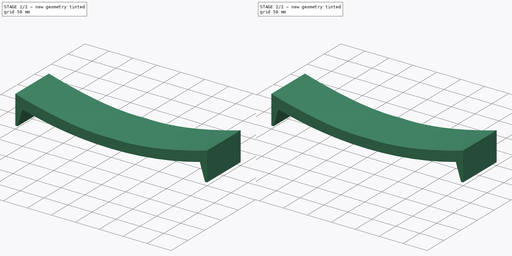
[diagram: build sequence overview — one tinted view per stage of 2, left to right]
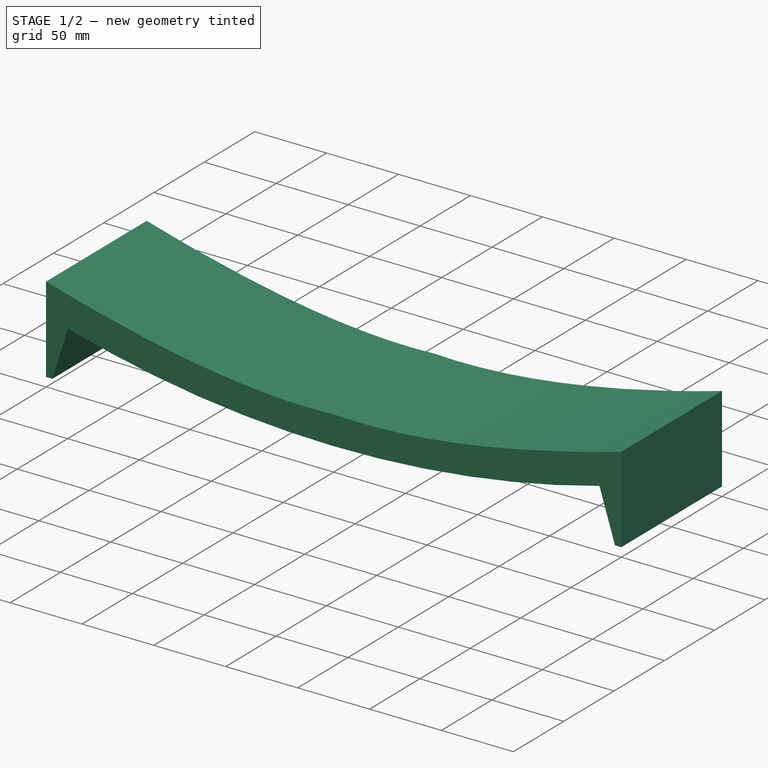
[diagram: stage 1 of 2 — iso view after this stage's code; geometry added in this stage tinted green]
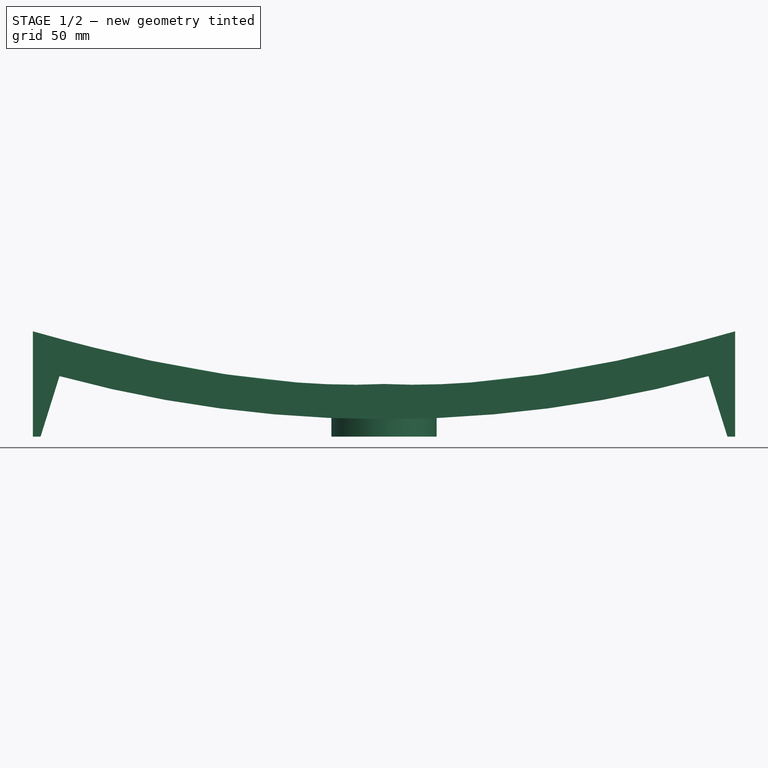
[diagram: stage 1 of 2 — front view after this stage's code; geometry added in this stage tinted green]
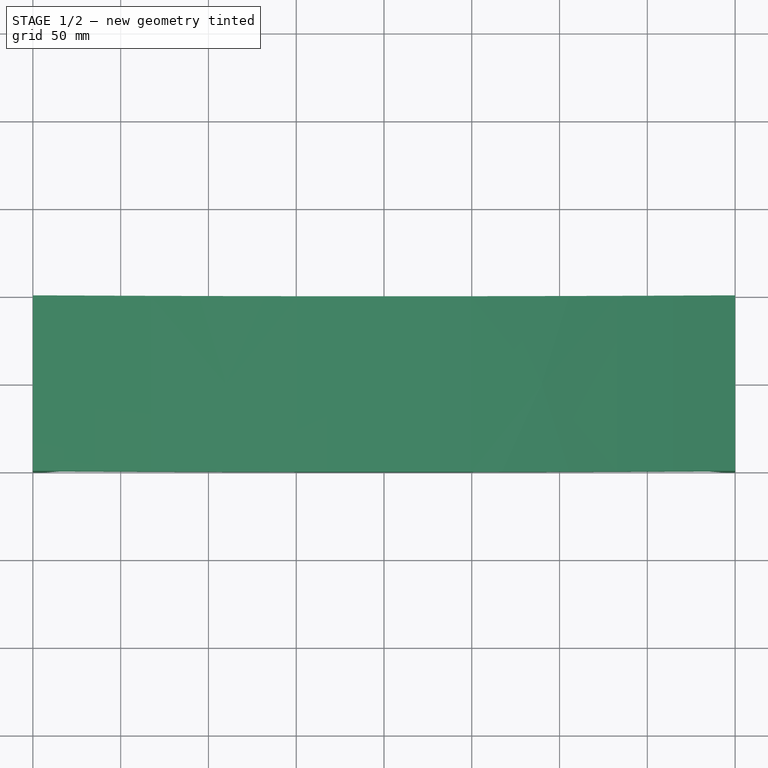
[diagram: stage 1 of 2 — top view after this stage's code; geometry added in this stage tinted green]
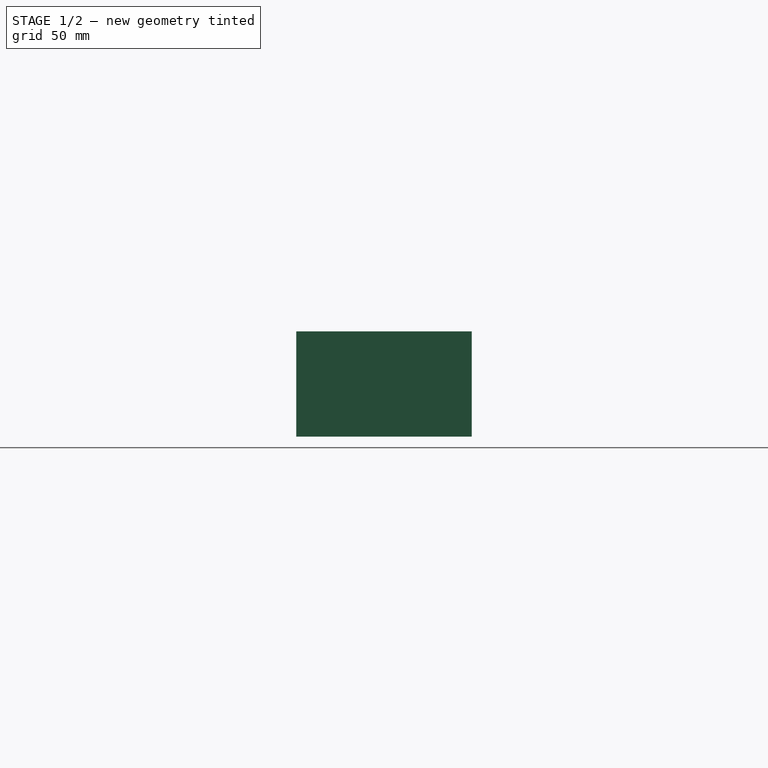
[diagram: stage 1 of 2 — right view after this stage's code; geometry added in this stage tinted green]
FCSTD DOCUMENT  (FreeCAD 0.20R29410 (Git))
Label: parte_cima_2
License: All rights reserved
LicenseURL: http://en.wikipedia.org/wiki/All_rights_reserved
objects: Sketcher::SketchObject×2, PartDesign::Pad×2, PartDesign::Body×2, PartDesign::Boolean×1
note: 9 computed .brp shape members not serialized (recipe doc carries the construction recipe); baked Part::Feature solids carry a one-line shape summary decoded from their .brp

FEATURE [Sketcher::SketchObject] Sketch
  FullyConstrained = false
  MapMode = 5
  Placement = pos=(0,0,0) rot=(1,0,0;1.5708rad)
  Support = -> [XZ_Plane]
  sketch-geometry (30):
    g0: LineSegment StartX=-200.006 StartY=59.9978 StartZ=0 EndX=-200.006 EndY=0 EndZ=0
    g1: LineSegment StartX=-195.646 StartY=0 StartZ=0 EndX=-184.855 EndY=34.4878 EndZ=0
    g2: Circle CenterX=0 CenterY=30 CenterZ=0 NormalX=0 NormalY=0 NormalZ=1 AngleXU=0 Radius=1
    g3: Circle CenterX=-80 CenterY=26.0112 CenterZ=0 NormalX=0 NormalY=0 NormalZ=1 AngleXU=0 Radius=1
    g4: Circle CenterX=-200.006 CenterY=59.9978 CenterZ=0 NormalX=0 NormalY=0 NormalZ=1 AngleXU=0 Radius=1
    g5: BSplineCurve PolesCount=3 KnotsCount=2 Degree=2 IsPeriodic=0
    g6: GeomPoint X=0 Y=30 Z=0
    g7: GeomPoint X=-200.006 Y=59.9978 Z=0
    g8: Circle CenterX=-184.855 CenterY=34.4878 CenterZ=0 NormalX=0 NormalY=0 NormalZ=1 AngleXU=0 Radius=1
    g9: Circle CenterX=-94.6948 CenterY=10 CenterZ=0 NormalX=0 NormalY=0 NormalZ=1 AngleXU=0 Radius=1
    g10: Circle CenterX=0 CenterY=10 CenterZ=0 NormalX=0 NormalY=0 NormalZ=1 AngleXU=0 Radius=1
    g11: BSplineCurve PolesCount=3 KnotsCount=2 Degree=2 IsPeriodic=0
    g12: GeomPoint X=-184.855 Y=34.4878 Z=0
    g13: GeomPoint X=0 Y=10 Z=0
    g14: LineSegment StartX=200.004 StartY=59.9978 StartZ=0 EndX=200.004 EndY=0 EndZ=0
    g15: LineSegment StartX=195.644 StartY=0 StartZ=0 EndX=184.855 EndY=34.4878 EndZ=0
    g16: Circle CenterX=0 CenterY=30 CenterZ=0 NormalX=0 NormalY=0 NormalZ=1 AngleXU=0 Radius=1
    g17: Circle CenterX=80 CenterY=26.0112 CenterZ=0 NormalX=0 NormalY=0 NormalZ=1 AngleXU=0 Radius=1
    g18: Circle CenterX=200.004 CenterY=59.9978 CenterZ=0 NormalX=0 NormalY=0 NormalZ=1 AngleXU=0 Radius=1
    g19: BSplineCurve PolesCount=3 KnotsCount=2 Degree=2 IsPeriodic=0
    g20: GeomPoint X=0 Y=30 Z=0
    g21: GeomPoint X=200.004 Y=59.9978 Z=0
    g22: Circle CenterX=184.855 CenterY=34.4878 CenterZ=0 NormalX=0 NormalY=0 NormalZ=1 AngleXU=0 Radius=1
    g23: Circle CenterX=94.6948 CenterY=10 CenterZ=0 NormalX=0 NormalY=0 NormalZ=1 AngleXU=0 Radius=1
    g24: Circle CenterX=0 CenterY=10 CenterZ=0 NormalX=0 NormalY=0 NormalZ=1 AngleXU=0 Radius=1
    g25: BSplineCurve PolesCount=3 KnotsCount=2 Degree=2 IsPeriodic=0
    g26: GeomPoint X=184.855 Y=34.4878 Z=0
    g27: GeomPoint X=0 Y=10 Z=0
    g28: LineSegment StartX=-195.646 StartY=0 StartZ=0 EndX=-200.006 EndY=0 EndZ=0
    g29: LineSegment StartX=200.004 StartY=0 StartZ=0 EndX=195.644 EndY=0 EndZ=0
  constraints (51):
    c: Vertical(g0)
    c: Weight(g2) = 1
    c: PointOnObject(g5,g-2)
    c: Equal(g2,g3)
    c: Equal(g2,g4)
    c: Coincident(g5,g0)
    c: InternalAlignment(g2,g5)
    c: InternalAlignment(g3,g5)
    c: InternalAlignment(g4,g5)
    c: InternalAlignment(g6,g5)
    c: InternalAlignment(g7,g5)
    c: Weight(g8) = 1
    c: Coincident(g11,g1)
    c: Equal(g8,g9)
    c: Equal(g8,g10)
    c: InternalAlignment(g8,g11)
    c: InternalAlignment(g9,g11)
    c: InternalAlignment(g10,g11)
    c: InternalAlignment(g12,g11)
    c: InternalAlignment(g13,g11)
    c: DistanceY(g1,g0) = 25.51
    c: DistanceY(g11,g5) = 20
    c: Vertical(g14)
    c: Weight(g16) = 1
    c: Equal(g16,g17)
    c: Equal(g16,g18)
    c: Coincident(g19,g14)
    c: InternalAlignment(g16,g19)
    c: InternalAlignment(g17,g19)
    c: InternalAlignment(g18,g19)
    c: InternalAlignment(g20,g19)
    c: InternalAlignment(g21,g19)
    c: Weight(g22) = 1
    c: Coincident(g25,g15)
    c: Equal(g22,g23)
    c: Equal(g22,g24)
    c: InternalAlignment(g22,g25)
    c: InternalAlignment(g23,g25)
    c: InternalAlignment(g24,g25)
    c: InternalAlignment(g26,g25)
    c: InternalAlignment(g27,g25)
    c: Coincident(g28,g1)
    c: Coincident(g28,g0)
    c: Horizontal(g28)
    c: Coincident(g29,g14)
    c: Coincident(g29,g15)
    c: Horizontal(g29)
    c: DistanceX(g28,g28) = 4.36
    c: DistanceX(g29,g29) = 4.36
    c: DistanceX(g0,g14) = 400.01
    c: DistanceX(g1,g15) = 369.71
FEATURE [PartDesign::Pad] Pad
  Direction = (0,-1,-2e-16)
  Length = 100
  Length2 = 10
  Placement = pos=(0,0,0) rot=(1,0,0;1.5708rad)
  Profile = -> Sketch
  ReferenceAxis = -> Sketch [N_Axis]
  Type = 0
FEATURE [Sketcher::SketchObject] Sketch001
  FullyConstrained = false
  MapMode = 5
  Support = -> [XY_Plane001]
  sketch-geometry (1):
    g0: Circle CenterX=0 CenterY=-50 CenterZ=0 NormalX=0 NormalY=0 NormalZ=1 AngleXU=0 Radius=30
  constraints (2):
    c: PointOnObject(g0,g-2)
    c: Radius(g0) = 30
FEATURE [PartDesign::Pad] Pad001
  Direction = (0,0,1)
  Length = 15
  Length2 = 10
  Profile = -> Sketch001
  ReferenceAxis = -> Sketch001 [N_Axis]
  Type = 0
  UseCustomVector = true
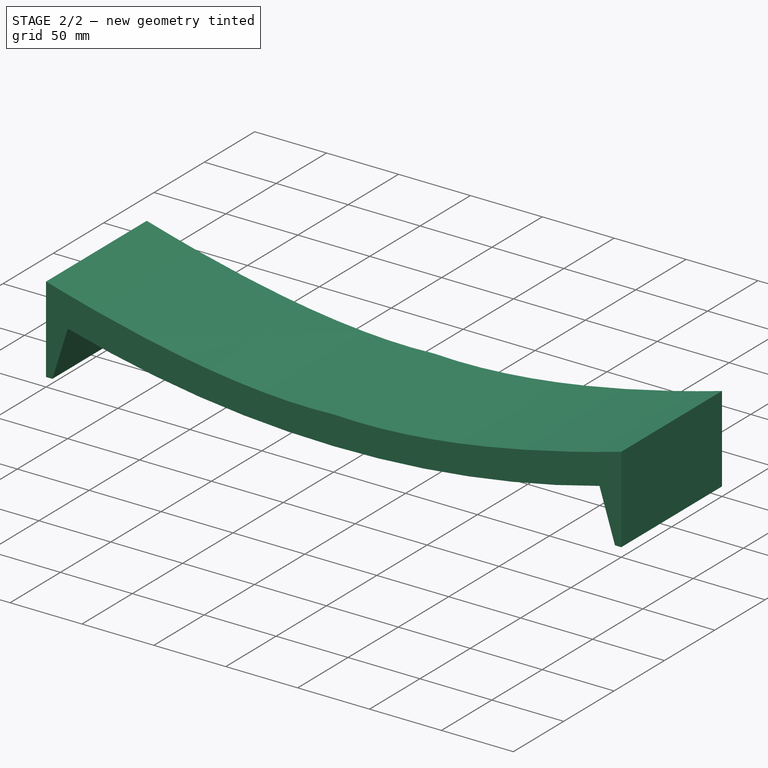
[diagram: stage 2 of 2 — iso view after this stage's code; geometry added in this stage tinted green]
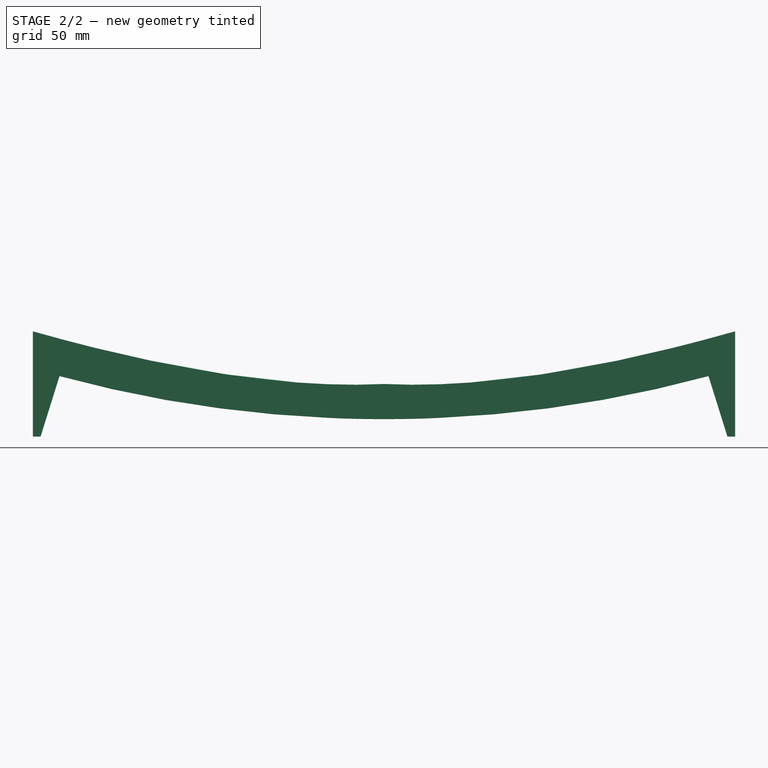
[diagram: stage 2 of 2 — front view after this stage's code; geometry added in this stage tinted green]
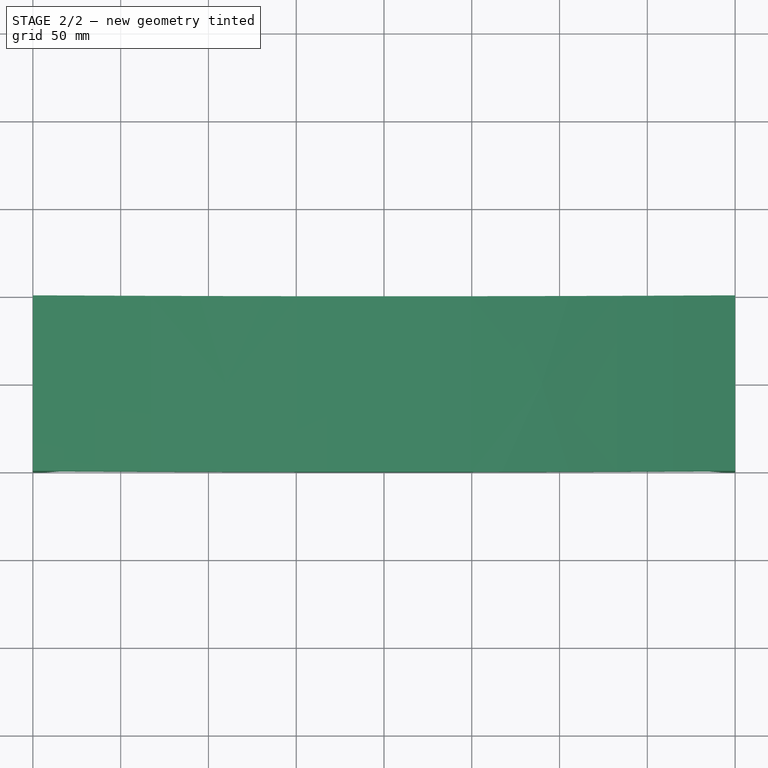
[diagram: stage 2 of 2 — top view after this stage's code; geometry added in this stage tinted green]
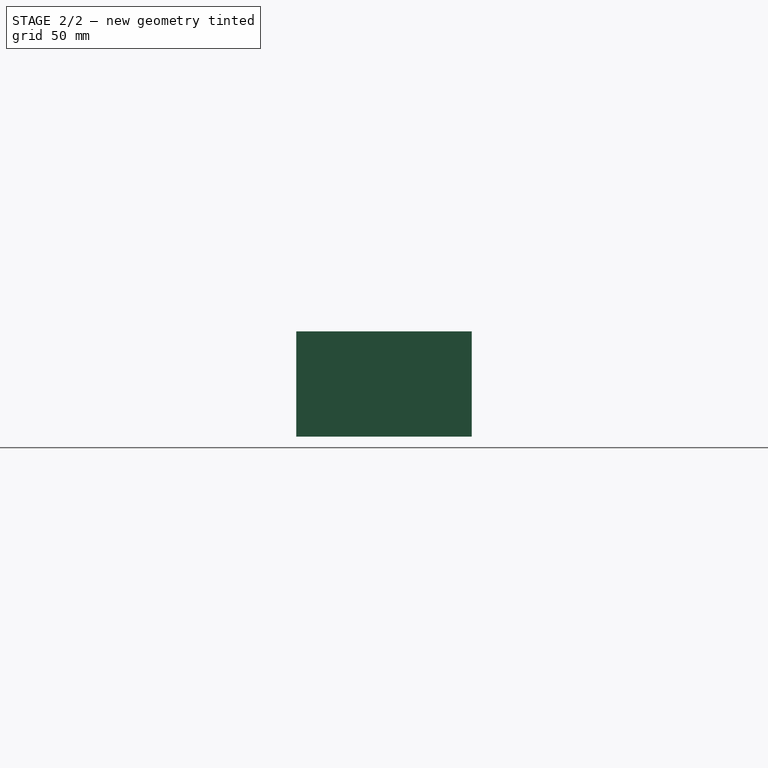
[diagram: stage 2 of 2 — right view after this stage's code; geometry added in this stage tinted green]
FEATURE [PartDesign::Body] Body001
  Group = -> [Sketch001,Pad001]
  Origin = -> Origin001
  Tip = -> Pad001
FEATURE [PartDesign::Boolean] Boolean
  BaseFeature = -> Pad
  Group = -> [Body001]
  Type = 1
FEATURE [PartDesign::Body] Body
  Group = -> [Sketch,Pad,Boolean]
  Origin = -> Origin
  Tip = -> Boolean
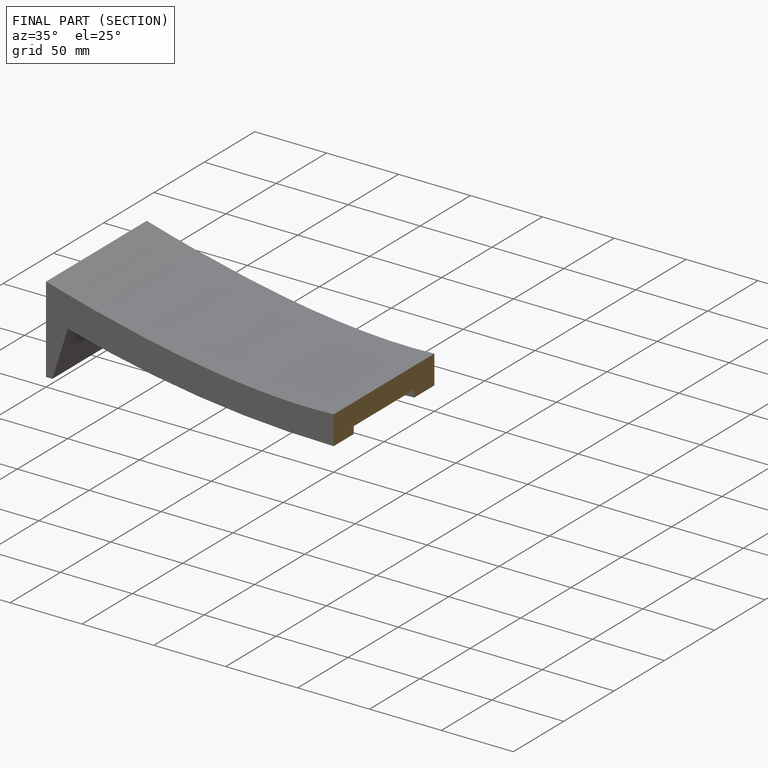
[diagram: finished part — half-section view (interior)]
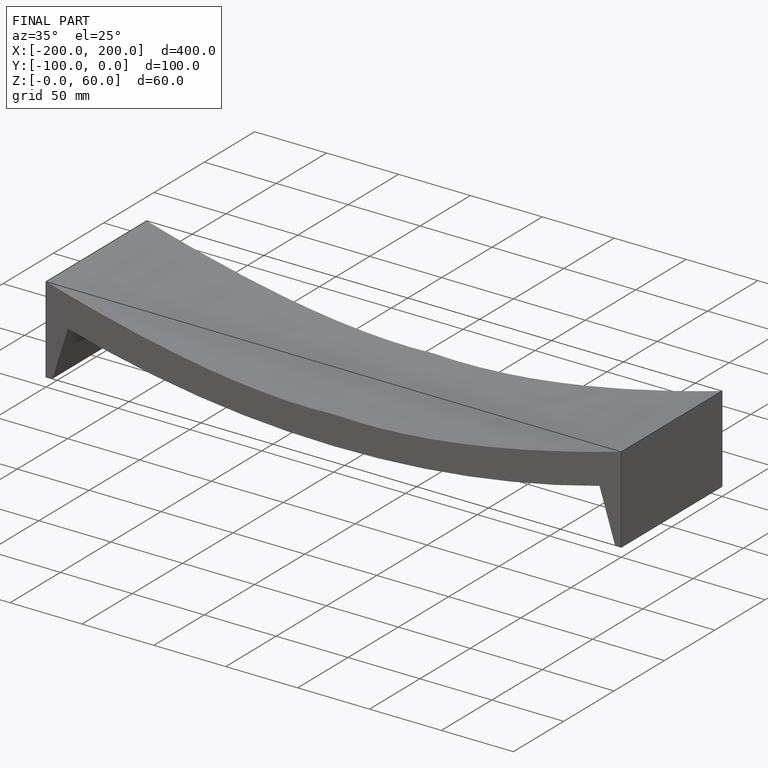
[diagram: finished part — iso view with bounding-box wireframe]
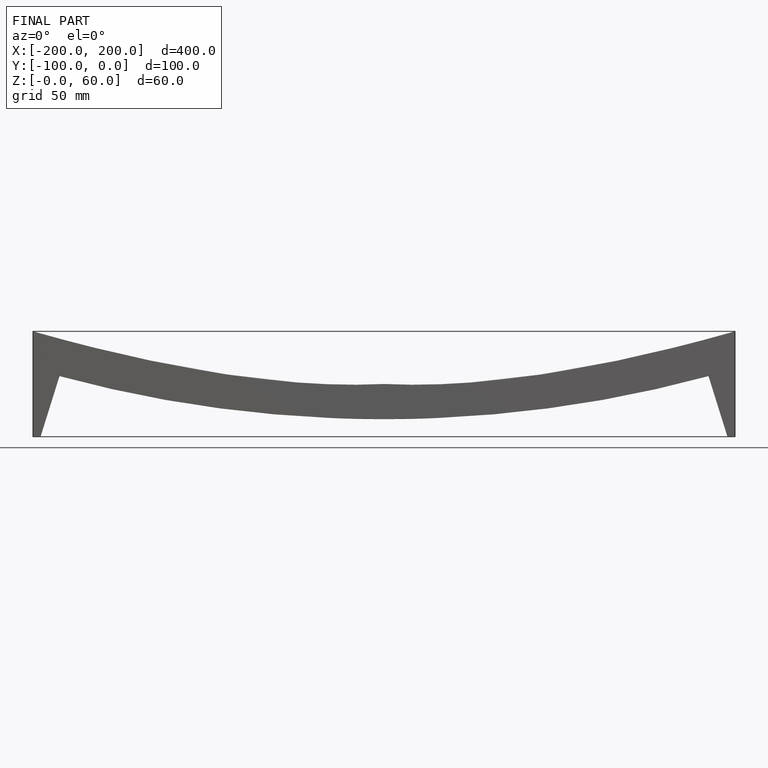
[diagram: finished part — front view with bounding-box wireframe]
